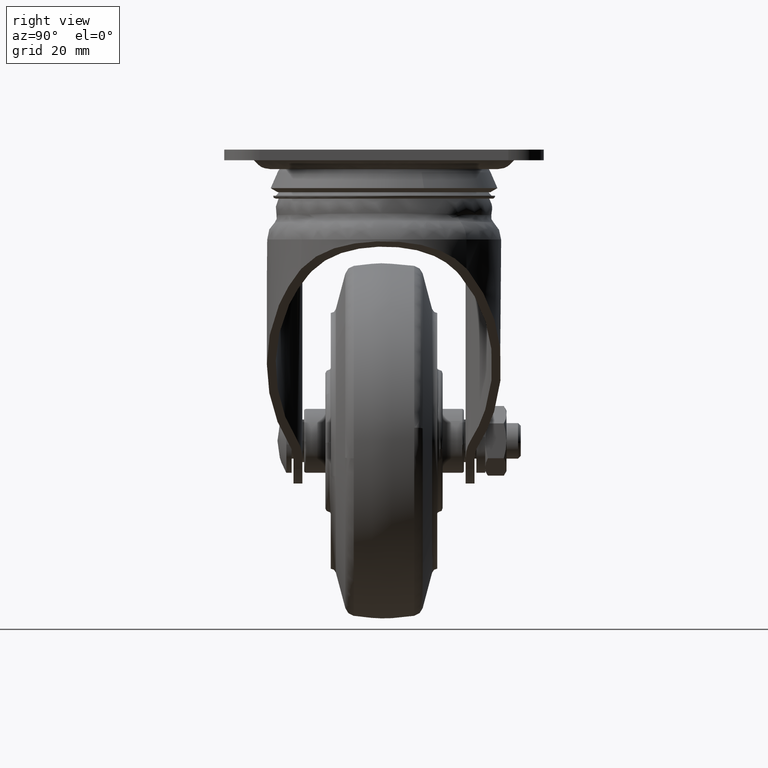
[diagram: clean part render]
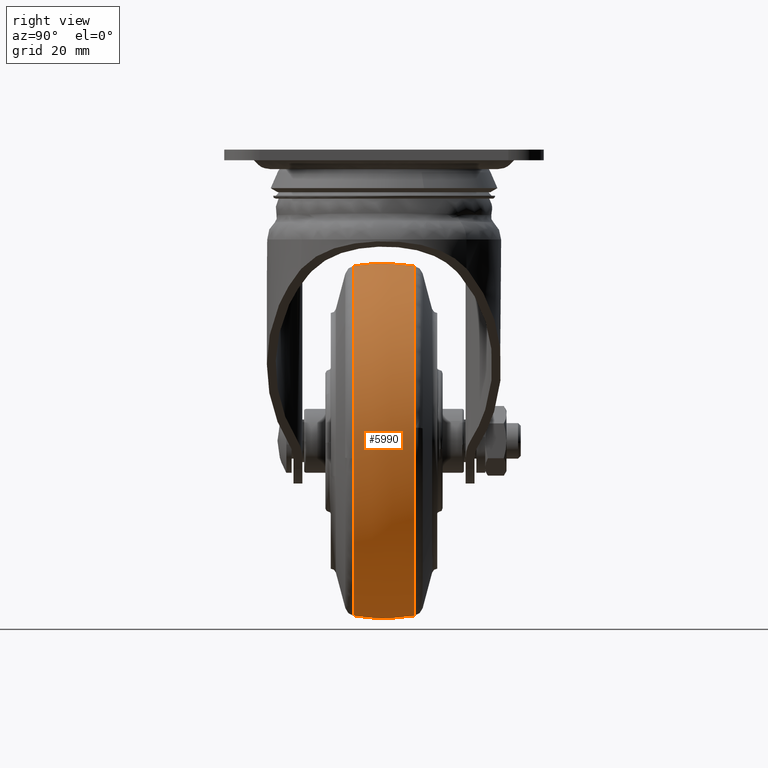
[diagram: same view with one face highlighted and labeled with its STEP entity id]
A machine part, right view. The second image highlights one B-rep face of the part: STEP entity #5990.
In plain terms, the highlighted face is a freeform B-spline surface patch.
Its self-contained STEP definition (entity closure, byte-faithful):
#2803=CARTESIAN_POINT('',(-48.122773142959900,-8.510638369610192,10.572026956915000));
#2804=VERTEX_POINT('',#2803);
#2818=CARTESIAN_POINT('',(0.0,-8.510638345072010,-49.270366702099892));
#2819=VERTEX_POINT('',#2818);
#2820=CARTESIAN_POINT('',(-48.122773142959893,-8.510638369610192,10.572026956914996));
#2821=CARTESIAN_POINT('',(-49.270366702099892,-8.510638345072010,5.348299120670765));
#2822=CARTESIAN_POINT('',(-49.270366702099892,-8.510638345072010,0.0));
#2823=CARTESIAN_POINT('',(-49.270366702099892,-8.510638345072010,-49.270366702099892));
#2824=CARTESIAN_POINT('',(0.0,-8.510638345072010,-49.270366702099892));
#2832=(BOUNDED_CURVE()B_SPLINE_CURVE(2,(#2820,#2821,#2822,#2823,#2824),.UNSPECIFIED.,.F.,.U.)B_SPLINE_CURVE_WITH_KNOTS((3,2,3),(0.713273120222253,0.750000000000000,1.0),.UNSPECIFIED.)CURVE()GEOMETRIC_REPRESENTATION_ITEM()RATIONAL_B_SPLINE_CURVE((0.926585904689259,0.956971783859684,1.0,0.707106781186548,1.0))REPRESENTATION_ITEM(''));
#2833=EDGE_CURVE('',#2804,#2819,#2832,.T.);
#2835=CARTESIAN_POINT('',(49.021605122731899,-8.510638179621729,-4.944823896773409));
#2836=VERTEX_POINT('',#2835);
#2837=CARTESIAN_POINT('',(0.0,-8.510638345072010,-49.270366702099892));
#2838=CARTESIAN_POINT('',(44.550474253753585,-8.510638345072010,-49.270366702099892));
#2839=CARTESIAN_POINT('',(49.021605122731899,-8.510638179621729,-4.944823896773409));
#2847=(BOUNDED_CURVE()B_SPLINE_CURVE(2,(#2837,#2838,#2839),.UNSPECIFIED.,.F.,.U.)B_SPLINE_CURVE_WITH_KNOTS((3,3),(0.0,0.232576678999748),.UNSPECIFIED.)CURVE()GEOMETRIC_REPRESENTATION_ITEM()RATIONAL_B_SPLINE_CURVE((1.0,0.727519471467283,0.962019874280448))REPRESENTATION_ITEM(''));
#2848=EDGE_CURVE('',#2819,#2836,#2847,.T.);
#2894=CARTESIAN_POINT('',(0.0,-8.510638345072010,49.270366702099892));
#2895=VERTEX_POINT('',#2894);
#2896=CARTESIAN_POINT('',(49.021605122731899,-8.510638179621729,-4.944823896773409));
#2897=CARTESIAN_POINT('',(49.270366702099892,-8.510638345072010,-2.478669231220379));
#2898=CARTESIAN_POINT('',(49.270366702099892,-8.510638345072010,0.0));
#2899=CARTESIAN_POINT('',(49.270366702099892,-8.510638345072010,49.270366702099892));
#2900=CARTESIAN_POINT('',(0.0,-8.510638345072010,49.270366702099892));
#2908=(BOUNDED_CURVE()B_SPLINE_CURVE(2,(#2896,#2897,#2898,#2899,#2900),.UNSPECIFIED.,.F.,.U.)B_SPLINE_CURVE_WITH_KNOTS((3,2,3),(0.232576678999748,0.250000000000000,0.500000000000000),.UNSPECIFIED.)CURVE()GEOMETRIC_REPRESENTATION_ITEM()RATIONAL_B_SPLINE_CURVE((0.962019874280448,0.979587309719264,1.0,0.707106781186548,1.0))REPRESENTATION_ITEM(''));
#2909=EDGE_CURVE('',#2836,#2895,#2908,.T.);
#2911=CARTESIAN_POINT('',(0.0,-8.510638345072010,49.270366702099892));
#2912=CARTESIAN_POINT('',(-39.621187069516743,-8.510638345072010,49.270366702099892));
#2913=CARTESIAN_POINT('',(-48.122773142959900,-8.510638369610192,10.572026956914996));
#2921=(BOUNDED_CURVE()B_SPLINE_CURVE(2,(#2911,#2912,#2913),.UNSPECIFIED.,.F.,.U.)B_SPLINE_CURVE_WITH_KNOTS((3,3),(0.500000000000000,0.713273120222253),.UNSPECIFIED.)CURVE()GEOMETRIC_REPRESENTATION_ITEM()RATIONAL_B_SPLINE_CURVE((1.0,0.750134997326864,0.926585904689258))REPRESENTATION_ITEM(''));
#2922=EDGE_CURVE('',#2895,#2804,#2921,.T.);
#2951=CARTESIAN_POINT('',(49.130384975265507,8.510638300753616,3.711379353495280));
#2952=VERTEX_POINT('',#2951);
#2953=CARTESIAN_POINT('',(0.0,8.510638300704320,49.270367002126001));
#2954=VERTEX_POINT('',#2953);
#2955=CARTESIAN_POINT('',(49.130384975265507,8.510638300753616,3.711379353495279));
#2956=CARTESIAN_POINT('',(45.688794069522103,8.510638300704320,49.270367002126001));
#2957=CARTESIAN_POINT('',(0.0,8.510638300704320,49.270367002126001));
#2965=(BOUNDED_CURVE()B_SPLINE_CURVE(2,(#2955,#2956,#2957),.UNSPECIFIED.,.F.,.U.)B_SPLINE_CURVE_WITH_KNOTS((3,3),(0.263129840737911,0.500000000000000),.UNSPECIFIED.)CURVE()GEOMETRIC_REPRESENTATION_ITEM()RATIONAL_B_SPLINE_CURVE((0.970850634526676,0.722489346451486,1.0))REPRESENTATION_ITEM(''));
#2966=EDGE_CURVE('',#2952,#2954,#2965,.T.);
#2984=CARTESIAN_POINT('',(-49.130384975265507,8.510638300753616,-3.711379353495281));
#2985=VERTEX_POINT('',#2984);
#2999=CARTESIAN_POINT('',(0.0,8.510638300704320,49.270367002126001));
#3000=CARTESIAN_POINT('',(-49.270367002125994,8.510638300704320,49.270367002125994));
#3001=CARTESIAN_POINT('',(-49.270367002126001,8.510638300704320,0.0));
#3002=CARTESIAN_POINT('',(-49.270367002126001,8.510638300704320,-1.858329526533196));
#3003=CARTESIAN_POINT('',(-49.130384975265528,8.510638300753616,-3.711379353495281));
#3011=(BOUNDED_CURVE()B_SPLINE_CURVE(2,(#2999,#3000,#3001,#3002,#3003),.UNSPECIFIED.,.F.,.U.)B_SPLINE_CURVE_WITH_KNOTS((3,2,3),(0.500000000000000,0.750000000000000,0.763129840737910),.UNSPECIFIED.)CURVE()GEOMETRIC_REPRESENTATION_ITEM()RATIONAL_B_SPLINE_CURVE((1.0,0.707106781186548,1.0,0.984617434735062,0.970850634526677))REPRESENTATION_ITEM(''));
#3012=EDGE_CURVE('',#2954,#2985,#3011,.T.);
#3040=CARTESIAN_POINT('',(0.0,8.510638300704320,-49.270367002126001));
#3041=VERTEX_POINT('',#3040);
#3042=CARTESIAN_POINT('',(0.0,8.510638300704320,-49.270367002126001));
#3043=CARTESIAN_POINT('',(49.270367002125994,8.510638300704320,-49.270367002125994));
#3044=CARTESIAN_POINT('',(49.270367002126001,8.510638300704320,0.0));
#3045=CARTESIAN_POINT('',(49.270367002126001,8.510638300704320,1.858329526533284));
#3046=CARTESIAN_POINT('',(49.130384975265514,8.510638300753616,3.711379353495280));
#3054=(BOUNDED_CURVE()B_SPLINE_CURVE(2,(#3042,#3043,#3044,#3045,#3046),.UNSPECIFIED.,.F.,.U.)B_SPLINE_CURVE_WITH_KNOTS((3,2,3),(0.0,0.250000000000000,0.263129840737911),.UNSPECIFIED.)CURVE()GEOMETRIC_REPRESENTATION_ITEM()RATIONAL_B_SPLINE_CURVE((1.0,0.707106781186548,1.0,0.984617434735061,0.970850634526676))REPRESENTATION_ITEM(''));
#3055=EDGE_CURVE('',#3041,#2952,#3054,.T.);
#3057=CARTESIAN_POINT('',(-49.130384975265507,8.510638300753616,-3.711379353495281));
#3058=CARTESIAN_POINT('',(-45.688794069522103,8.510638300704320,-49.270367002126001));
#3059=CARTESIAN_POINT('',(0.0,8.510638300704320,-49.270367002126001));
#3067=(BOUNDED_CURVE()B_SPLINE_CURVE(2,(#3057,#3058,#3059),.UNSPECIFIED.,.F.,.U.)B_SPLINE_CURVE_WITH_KNOTS((3,3),(0.763129840737911,1.0),.UNSPECIFIED.)CURVE()GEOMETRIC_REPRESENTATION_ITEM()RATIONAL_B_SPLINE_CURVE((0.970850634526676,0.722489346451486,1.0))REPRESENTATION_ITEM(''));
#3068=EDGE_CURVE('',#2985,#3041,#3067,.T.);
#5934=CARTESIAN_POINT('',(-30.463635649817938,-25.387237416731789,30.454147161620430));
#5935=CARTESIAN_POINT('',(-28.153146200955636,-19.673061231738515,37.528817650632583));
#5936=CARTESIAN_POINT('',(-12.223506776821454,-10.504409189417592,48.883578259294119));
#5937=CARTESIAN_POINT('',(12.219156528411796,-10.509473181864335,48.883577415611661));
#5938=CARTESIAN_POINT('',(28.144994707607285,-19.684724991811098,37.528815707401066));
#5939=CARTESIAN_POINT('',(30.453115761809681,-25.399858053246572,30.454145058969271));
#5940=CARTESIAN_POINT('',(-37.536169685716132,-19.669554020515594,28.145794418592832));
#5941=CARTESIAN_POINT('',(-36.666170082054698,-10.497309071671259,36.662247357685963));
#5942=CARTESIAN_POINT('',(-17.520097328991206,6.626933055310615,52.565519979121206));
#5943=CARTESIAN_POINT('',(17.522845368717725,6.619672913691963,52.565518769551055));
#5944=CARTESIAN_POINT('',(36.661819833645040,-10.512501049011510,36.662244826638606));
#5945=CARTESIAN_POINT('',(37.528018192367774,-19.685105700612372,28.145791827617483));
#5946=CARTESIAN_POINT('',(-48.887501734671339,-10.490704824848725,12.219584288945978));
#5947=CARTESIAN_POINT('',(-52.563040026700129,6.640031498697573,17.522578225252875));
#5948=CARTESIAN_POINT('',(-30.928778982578990,50.001253564200567,30.947469416319560));
#5949=CARTESIAN_POINT('',(30.949496824759741,49.988433720577440,30.947467280479660));
#5950=CARTESIAN_POINT('',(52.565788066426649,6.618251073841611,17.522574596542430));
#5951=CARTESIAN_POINT('',(48.883151486261688,-10.510960794635729,12.219580914216170));
#5952=CARTESIAN_POINT('',(-48.887501734671339,-10.486632574249565,-12.223079201635228));
#5953=CARTESIAN_POINT('',(-52.563040026700129,6.645869800465879,-17.520364738185606));
#5954=CARTESIAN_POINT('',(-30.928778982578990,50.011562745429508,-30.930806860240221));
#5955=CARTESIAN_POINT('',(30.949496824759741,49.998742901806366,-30.930808996080120));
#5956=CARTESIAN_POINT('',(52.565788066426649,6.624089375609917,-17.520368366896047));
#5957=CARTESIAN_POINT('',(48.883151486261688,-10.506888544036570,-12.223082576365037));
#5958=CARTESIAN_POINT('',(-37.536169685716132,-19.660174513250631,-28.152346916877164));
#5959=CARTESIAN_POINT('',(-36.666170082054698,-10.485092319873784,-36.665743114057655));
#5960=CARTESIAN_POINT('',(-17.520097328991206,6.644447960615521,-52.563308911194234));
#5961=CARTESIAN_POINT('',(17.522845368717725,6.637187818996869,-52.563310120764378));
#5962=CARTESIAN_POINT('',(36.661819833645040,-10.500284297214037,-36.665745645105012));
#5963=CARTESIAN_POINT('',(37.528018192367774,-19.675726193347405,-28.152349507852513));
#5964=CARTESIAN_POINT('',(-30.463635649817938,-25.377088429514746,-30.462604711937033));
#5965=CARTESIAN_POINT('',(-28.153146200955636,-19.660555222051904,-37.535370796660729));
#5966=CARTESIAN_POINT('',(-12.223506776821454,-10.488120187020959,-48.887075703030710));
#5967=CARTESIAN_POINT('',(12.219156528411796,-10.493184179467704,-48.887076546713160));
#5968=CARTESIAN_POINT('',(28.144994707607285,-19.672218982124487,-37.535372739892246));
#5969=CARTESIAN_POINT('',(30.453115761809681,-25.389709066029553,-30.462606814588188));
#5977=(BOUNDED_SURFACE()B_SPLINE_SURFACE(2,2,((#5934,#5940,#5946,#5952,#5958,#5964),(#5935,#5941,#5947,#5953,#5959,#5965),(#5936,#5942,#5948,#5954,#5960,#5966),(#5937,#5943,#5949,#5955,#5961,#5967),(#5938,#5944,#5950,#5956,#5962,#5968),(#5939,#5945,#5951,#5957,#5963,#5969)),.UNSPECIFIED.,.F.,.F.,.U.)B_SPLINE_SURFACE_WITH_KNOTS((3,1,1,1,3),(3,1,1,1,3),(0.0,51.935441528975502,103.870883057951000,155.806324586926510,207.741766115902010),(0.0,51.935441528975510,103.870883057951000,155.806324586926510,207.741766115902010),.UNSPECIFIED.)GEOMETRIC_REPRESENTATION_ITEM()RATIONAL_B_SPLINE_SURFACE(((4.063136944989983,3.297352708742487,2.531568472494992,2.531568472494992,3.297352708742487,4.063136944989983),(3.297352708742487,2.531568472494992,1.765784236247496,1.765784236247496,2.531568472494992,3.297352708742487),(2.531568472494992,1.765784236247496,1.0,1.0,1.765784236247496,2.531568472494992),(2.531568472494992,1.765784236247496,1.0,1.0,1.765784236247496,2.531568472494992),(3.297352708742487,2.531568472494992,1.765784236247496,1.765784236247496,2.531568472494992,3.297352708742487),(4.063136944989983,3.297352708742487,2.531568472494992,2.531568472494992,3.297352708742487,4.063136944989983)))REPRESENTATION_ITEM('')SURFACE());
#5978=ORIENTED_EDGE('',*,*,#2833,.F.);
#5979=ORIENTED_EDGE('',*,*,#2922,.F.);
#5980=ORIENTED_EDGE('',*,*,#2909,.F.);
#5981=ORIENTED_EDGE('',*,*,#2848,.F.);
#5982=EDGE_LOOP('',(#5978,#5979,#5980,#5981));
#5983=FACE_OUTER_BOUND('',#5982,.T.);
#5984=ORIENTED_EDGE('',*,*,#3012,.T.);
#5985=ORIENTED_EDGE('',*,*,#3068,.T.);
#5986=ORIENTED_EDGE('',*,*,#3055,.T.);
#5987=ORIENTED_EDGE('',*,*,#2966,.T.);
#5988=EDGE_LOOP('',(#5984,#5985,#5986,#5987));
#5989=FACE_BOUND('',#5988,.T.);
#5990=ADVANCED_FACE('',(#5983,#5989),#5977,.T.);